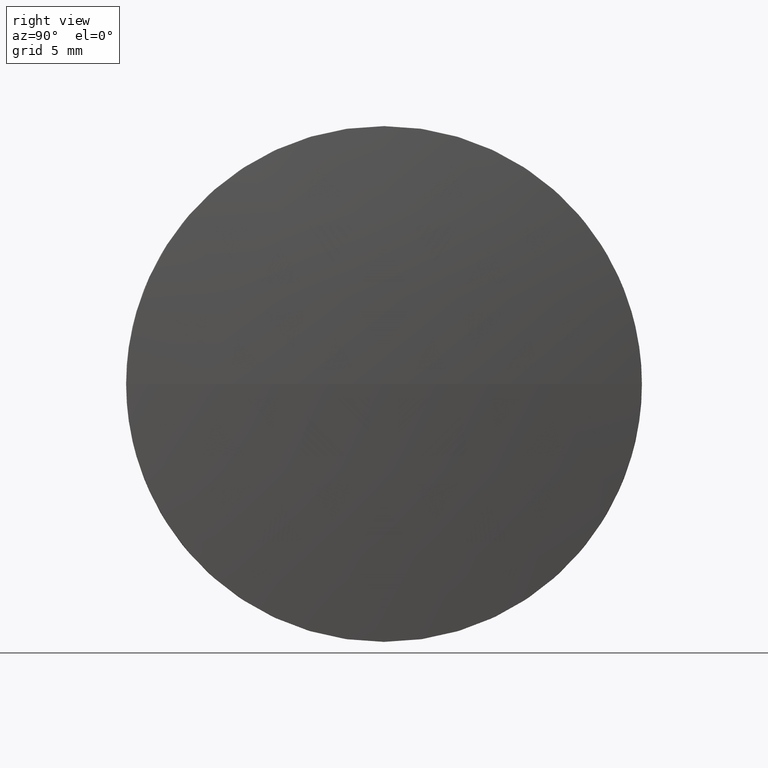
[diagram: clean part render]
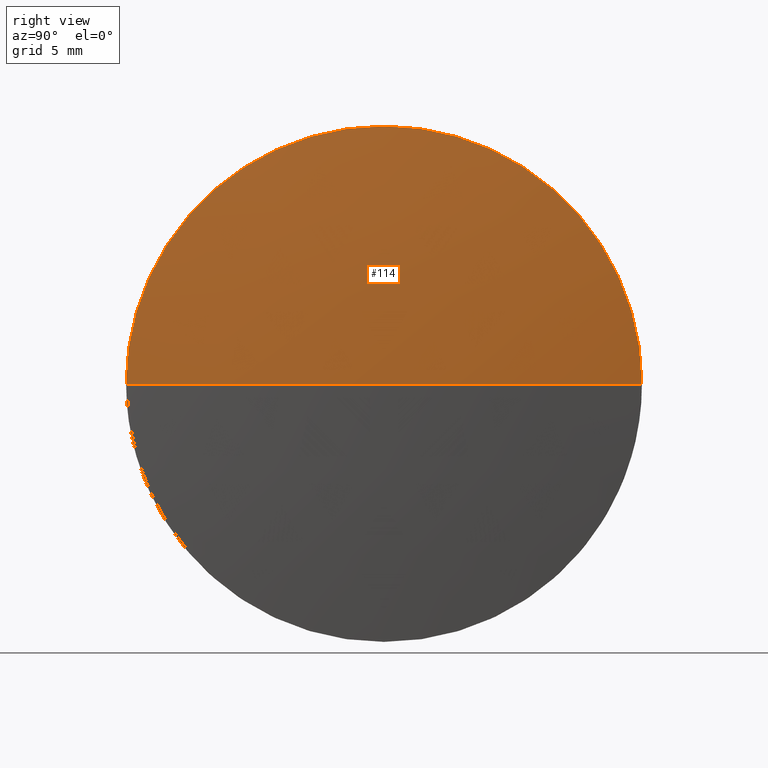
[diagram: same view with one face highlighted and labeled with its STEP entity id]
A machine part, right view. The second image highlights one B-rep face of the part: STEP entity #114.
In plain terms, the highlighted spherical surface has radius 128.379 mm.
Its self-contained STEP definition (entity closure, byte-faithful):
#4 = VERTEX_POINT ( 'NONE', #147 ) ;
#5 = CARTESIAN_POINT ( 'NONE',  ( 432.6734626565939800, 55.36771829137188700, -1.530808498934185000E-015 ) ) ;
#9 = AXIS2_PLACEMENT_3D ( 'NONE', #70, #13, #59 ) ;
#10 = EDGE_LOOP ( 'NONE', ( #21, #42, #170, #152 ) ) ;
#13 = DIRECTION ( 'NONE',  ( 0.0000000000000000000, 1.224646799147353200E-016, -1.000000000000000000 ) ) ;
#16 = EDGE_CURVE ( 'NONE', #118, #69, #74, .T. ) ;
#21 = ORIENTED_EDGE ( 'NONE', *, *, #49, .F. ) ;
#28 = CARTESIAN_POINT ( 'NONE',  ( 433.2834626565940000, 67.86771829137184400, 0.0000000000000000000 ) ) ;
#29 = CARTESIAN_POINT ( 'NONE',  ( 304.9046921647905600, 67.86771829137183000, 0.0000000000000000000 ) ) ;
#32 = VERTEX_POINT ( 'NONE', #28 ) ;
#35 = DIRECTION ( 'NONE',  ( 0.0000000000000000000, 0.0000000000000000000, 1.000000000000000000 ) ) ;
#41 = EDGE_CURVE ( 'NONE', #32, #4, #94, .T. ) ;
#42 = ORIENTED_EDGE ( 'NONE', *, *, #41, .T. ) ;
#49 = EDGE_CURVE ( 'NONE', #32, #118, #104, .T. ) ;
#50 = AXIS2_PLACEMENT_3D ( 'NONE', #100, #115, #35 ) ;
#59 = DIRECTION ( 'NONE',  ( 0.0000000000000000000, 1.000000000000000000, 1.224646799147353200E-016 ) ) ;
#61 = DIRECTION ( 'NONE',  ( 0.0000000000000000000, 0.0000000000000000000, 1.000000000000000000 ) ) ;
#69 = VERTEX_POINT ( 'NONE', #172 ) ;
#70 = CARTESIAN_POINT ( 'NONE',  ( 304.9046921647905600, 67.86771829137183000, 0.0000000000000000000 ) ) ;
#74 = CIRCLE ( 'NONE', #106, 12.49999999999999600 ) ;
#76 = AXIS2_PLACEMENT_3D ( 'NONE', #109, #108, #144 ) ;
#94 = CIRCLE ( 'NONE', #76, 128.3787704918034600 ) ;
#95 = DIRECTION ( 'NONE',  ( -1.000000000000000000, -0.0000000000000000000, -0.0000000000000000000 ) ) ;
#98 = EDGE_CURVE ( 'NONE', #69, #4, #169, .T. ) ;
#100 = CARTESIAN_POINT ( 'NONE',  ( 432.6734626565939800, 67.86771829137194300, 0.0000000000000000000 ) ) ;
#104 = CIRCLE ( 'NONE', #9, 128.3787704918034600 ) ;
#106 = AXIS2_PLACEMENT_3D ( 'NONE', #185, #95, #61 ) ;
#108 = DIRECTION ( 'NONE',  ( -0.0000000000000000000, 0.0000000000000000000, 1.000000000000000000 ) ) ;
#109 = CARTESIAN_POINT ( 'NONE',  ( 304.9046921647905600, 67.86771829137183000, 0.0000000000000000000 ) ) ;
#114 = ADVANCED_FACE ( 'NONE', ( #123 ), #138, .T. ) ;
#115 = DIRECTION ( 'NONE',  ( -1.000000000000000000, -0.0000000000000000000, -0.0000000000000000000 ) ) ;
#118 = VERTEX_POINT ( 'NONE', #5 ) ;
#123 = FACE_OUTER_BOUND ( 'NONE', #10, .T. ) ;
#132 = DIRECTION ( 'NONE',  ( -0.0000000000000000000, 0.0000000000000000000, -1.000000000000000000 ) ) ;
#138 = SPHERICAL_SURFACE ( 'NONE', #151, 128.3787704918034600 ) ;
#144 = DIRECTION ( 'NONE',  ( 1.000000000000000000, 0.0000000000000000000, 0.0000000000000000000 ) ) ;
#147 = CARTESIAN_POINT ( 'NONE',  ( 432.6734626565939800, 80.36771829137190100, 0.0000000000000000000 ) ) ;
#149 = DIRECTION ( 'NONE',  ( 0.0000000000000000000, 1.000000000000000000, 0.0000000000000000000 ) ) ;
#151 = AXIS2_PLACEMENT_3D ( 'NONE', #29, #132, #149 ) ;
#152 = ORIENTED_EDGE ( 'NONE', *, *, #16, .F. ) ;
#169 = CIRCLE ( 'NONE', #50, 12.49999999999999600 ) ;
#170 = ORIENTED_EDGE ( 'NONE', *, *, #98, .F. ) ;
#172 = CARTESIAN_POINT ( 'NONE',  ( 432.6734626565939800, 67.86771829137194300, 12.49999999999999600 ) ) ;
#185 = CARTESIAN_POINT ( 'NONE',  ( 432.6734626565939800, 67.86771829137194300, 0.0000000000000000000 ) ) ;